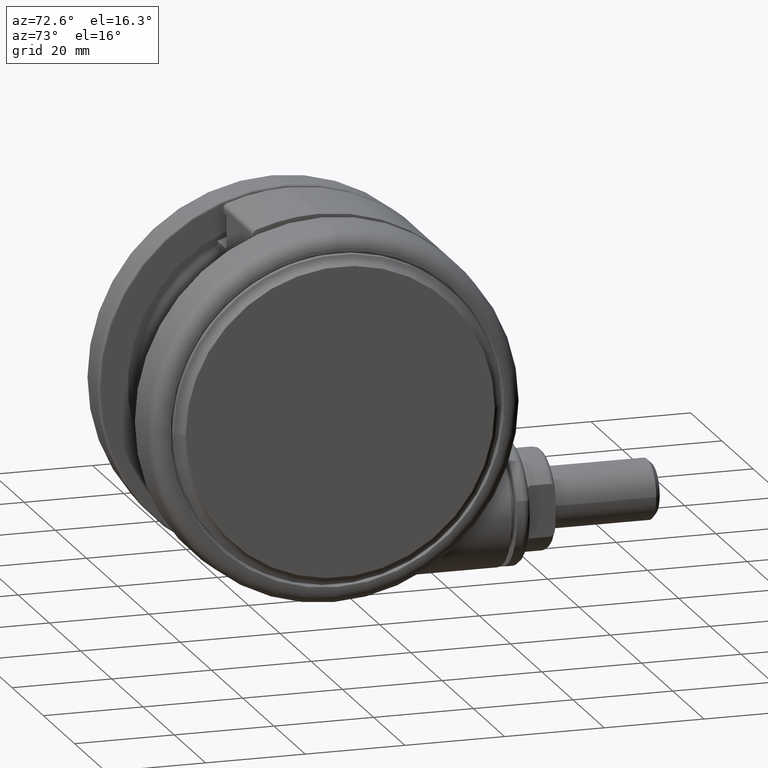
[diagram: clean part render]
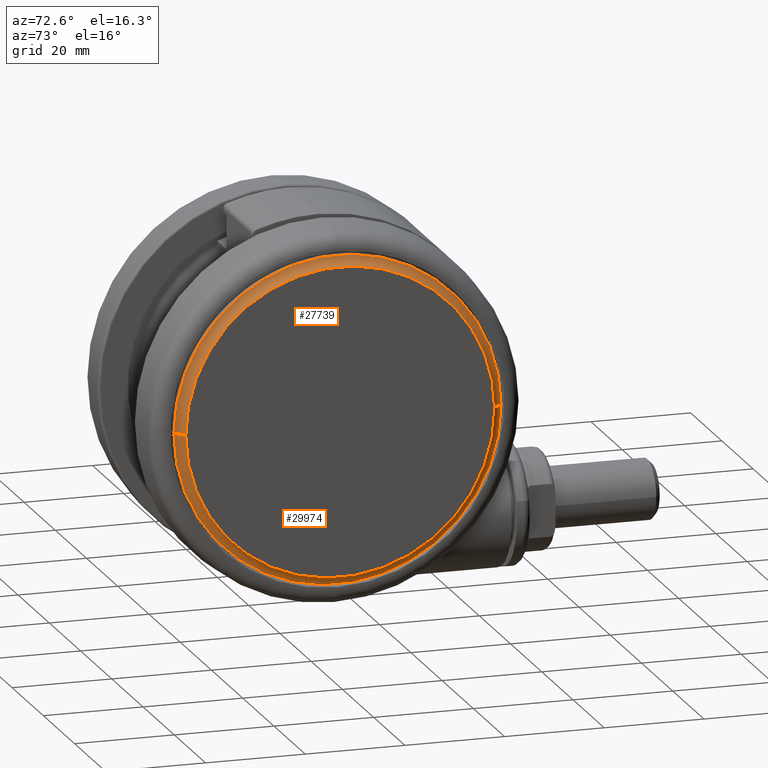
[diagram: same view with one multi-face feature highlighted, each face labeled with its STEP entity id]
A machine part, auxiliary view. The highlighted faces form ONE feature: a constant-radius fillet chain: 2 tangent blend faces with common blend radius 2.2 mm. The faces share edges in the B-rep.
Their STEP definitions:
[1] entity #27739 (Torus):
#140 = AXIS2_PLACEMENT_3D ( 'NONE', #41279, #14474, #45780 ) ;
#2730 = DIRECTION ( 'NONE',  ( 1.224646799147353200E-016, 1.000000000000000000, -0.0000000000000000000 ) ) ;
#2747 = ORIENTED_EDGE ( 'NONE', *, *, #40295, .F. ) ;
#2987 = CIRCLE ( 'NONE', #48537, 2.200000000000000600 ) ;
#3096 = EDGE_CURVE ( 'NONE', #14335, #57548, #17477, .T. ) ;
#8681 = DIRECTION ( 'NONE',  ( 1.000000000000000000, 0.0000000000000000000, 0.0000000000000000000 ) ) ;
#13004 = EDGE_LOOP ( 'NONE', ( #2747, #18936, #57588, #16502 ) ) ;
#13589 = DIRECTION ( 'NONE',  ( 0.0000000000000000000, -1.000000000000000000, 0.0000000000000000000 ) ) ;
#14335 = VERTEX_POINT ( 'NONE', #28966 ) ;
#14417 = VERTEX_POINT ( 'NONE', #15477 ) ;
#14474 = DIRECTION ( 'NONE',  ( 0.0000000000000000000, 0.0000000000000000000, 1.000000000000000000 ) ) ;
#15477 = CARTESIAN_POINT ( 'NONE',  ( -31.00000000000000000, 3.907598370292685700E-015, -1.301042606982605300E-015 ) ) ;
#16341 = CIRCLE ( 'NONE', #140, 32.81592428140525200 ) ;
#16502 = ORIENTED_EDGE ( 'NONE', *, *, #3096, .F. ) ;
#17477 = CIRCLE ( 'NONE', #37555, 2.200000000000000200 ) ;
#18936 = ORIENTED_EDGE ( 'NONE', *, *, #29888, .T. ) ;
#19014 = AXIS2_PLACEMENT_3D ( 'NONE', #19309, #50591, #23822 ) ;
#19309 = CARTESIAN_POINT ( 'NONE',  ( 0.0000000000000000000, 0.0000000000000000000, -1.301042606982605300E-015 ) ) ;
#22837 = CARTESIAN_POINT ( 'NONE',  ( -32.81592428142002400, 4.018791663230294400E-015, -1.788098396446942800 ) ) ;
#23822 = DIRECTION ( 'NONE',  ( 1.000000000000000000, 0.0000000000000000000, 0.0000000000000000000 ) ) ;
#26281 = CARTESIAN_POINT ( 'NONE',  ( 32.81592428142002400, 0.0000000000000000000, -1.788098396446942800 ) ) ;
#27739 = ADVANCED_FACE ( 'NONE', ( #51426 ), #39549, .F. ) ;
#28496 = EDGE_CURVE ( 'NONE', #55645, #57548, #16341, .T. ) ;
#28966 = CARTESIAN_POINT ( 'NONE',  ( 31.00000000000000000, 0.0000000000000000000, -1.301042606982605300E-015 ) ) ;
#29538 = CARTESIAN_POINT ( 'NONE',  ( -33.16625847233755300, 4.061695227784196800E-015, 0.3838283874674035500 ) ) ;
#29888 = EDGE_CURVE ( 'NONE', #14417, #55645, #2987, .T. ) ;
#34022 = DIRECTION ( 'NONE',  ( -1.000000000000000000, 1.224646799147351500E-016, 0.0000000000000000000 ) ) ;
#35504 = CARTESIAN_POINT ( 'NONE',  ( 0.0000000000000000000, 0.0000000000000000000, 0.3838283874674035500 ) ) ;
#37555 = AXIS2_PLACEMENT_3D ( 'NONE', #40412, #13589, #44896 ) ;
#38851 = CIRCLE ( 'NONE', #19014, 31.00000000000000000 ) ;
#39549 = TOROIDAL_SURFACE ( 'NONE', #55594, 33.16625847233755300, 2.200000000000000200 ) ;
#40295 = EDGE_CURVE ( 'NONE', #14417, #14335, #38851, .T. ) ;
#40412 = CARTESIAN_POINT ( 'NONE',  ( 33.16625847233755300, 0.0000000000000000000, 0.3838283874674035500 ) ) ;
#41279 = CARTESIAN_POINT ( 'NONE',  ( 0.0000000000000000000, 0.0000000000000000000, -1.788098396446942800 ) ) ;
#44896 = DIRECTION ( 'NONE',  ( 0.0000000000000000000, 0.0000000000000000000, -1.000000000000000000 ) ) ;
#45780 = DIRECTION ( 'NONE',  ( 1.000000000000000000, 0.0000000000000000000, 0.0000000000000000000 ) ) ;
#48537 = AXIS2_PLACEMENT_3D ( 'NONE', #29538, #2730, #34022 ) ;
#50591 = DIRECTION ( 'NONE',  ( 0.0000000000000000000, 0.0000000000000000000, 1.000000000000000000 ) ) ;
#51426 = FACE_OUTER_BOUND ( 'NONE', #13004, .T. ) ;
#53331 = DIRECTION ( 'NONE',  ( 0.0000000000000000000, 0.0000000000000000000, 1.000000000000000000 ) ) ;
#55594 = AXIS2_PLACEMENT_3D ( 'NONE', #35504, #53331, #8681 ) ;
#55645 = VERTEX_POINT ( 'NONE', #22837 ) ;
#57548 = VERTEX_POINT ( 'NONE', #26281 ) ;
#57588 = ORIENTED_EDGE ( 'NONE', *, *, #28496, .T. ) ;
[2] entity #29974 (Torus):
#395 = AXIS2_PLACEMENT_3D ( 'NONE', #6752, #38109, #11272 ) ;
#1625 = CARTESIAN_POINT ( 'NONE',  ( 0.0000000000000000000, 0.0000000000000000000, -1.301042606982605300E-015 ) ) ;
#2730 = DIRECTION ( 'NONE',  ( 1.224646799147353200E-016, 1.000000000000000000, -0.0000000000000000000 ) ) ;
#2858 = ORIENTED_EDGE ( 'NONE', *, *, #57328, .F. ) ;
#2987 = CIRCLE ( 'NONE', #48537, 2.200000000000000600 ) ;
#3096 = EDGE_CURVE ( 'NONE', #14335, #57548, #17477, .T. ) ;
#6110 = DIRECTION ( 'NONE',  ( 1.000000000000000000, 0.0000000000000000000, 0.0000000000000000000 ) ) ;
#6752 = CARTESIAN_POINT ( 'NONE',  ( 0.0000000000000000000, 0.0000000000000000000, -1.788098396446942800 ) ) ;
#11272 = DIRECTION ( 'NONE',  ( 1.000000000000000000, 0.0000000000000000000, 0.0000000000000000000 ) ) ;
#11960 = EDGE_LOOP ( 'NONE', ( #50247, #2858, #46109, #52628 ) ) ;
#13589 = DIRECTION ( 'NONE',  ( 0.0000000000000000000, -1.000000000000000000, 0.0000000000000000000 ) ) ;
#14335 = VERTEX_POINT ( 'NONE', #28966 ) ;
#14417 = VERTEX_POINT ( 'NONE', #15477 ) ;
#15477 = CARTESIAN_POINT ( 'NONE',  ( -31.00000000000000000, 3.907598370292685700E-015, -1.301042606982605300E-015 ) ) ;
#17477 = CIRCLE ( 'NONE', #37555, 2.200000000000000200 ) ;
#22837 = CARTESIAN_POINT ( 'NONE',  ( -32.81592428142002400, 4.018791663230294400E-015, -1.788098396446942800 ) ) ;
#26043 = DIRECTION ( 'NONE',  ( 0.0000000000000000000, 0.0000000000000000000, 1.000000000000000000 ) ) ;
#26071 = EDGE_CURVE ( 'NONE', #57548, #55645, #54447, .T. ) ;
#26235 = DIRECTION ( 'NONE',  ( 1.000000000000000000, 0.0000000000000000000, 0.0000000000000000000 ) ) ;
#26281 = CARTESIAN_POINT ( 'NONE',  ( 32.81592428142002400, 0.0000000000000000000, -1.788098396446942800 ) ) ;
#26460 = AXIS2_PLACEMENT_3D ( 'NONE', #53046, #26043, #26235 ) ;
#28966 = CARTESIAN_POINT ( 'NONE',  ( 31.00000000000000000, 0.0000000000000000000, -1.301042606982605300E-015 ) ) ;
#29538 = CARTESIAN_POINT ( 'NONE',  ( -33.16625847233755300, 4.061695227784196800E-015, 0.3838283874674035500 ) ) ;
#29888 = EDGE_CURVE ( 'NONE', #14417, #55645, #2987, .T. ) ;
#29974 = ADVANCED_FACE ( 'NONE', ( #34471 ), #45006, .F. ) ;
#32919 = DIRECTION ( 'NONE',  ( 0.0000000000000000000, 0.0000000000000000000, 1.000000000000000000 ) ) ;
#34022 = DIRECTION ( 'NONE',  ( -1.000000000000000000, 1.224646799147351500E-016, 0.0000000000000000000 ) ) ;
#34471 = FACE_OUTER_BOUND ( 'NONE', #11960, .T. ) ;
#37555 = AXIS2_PLACEMENT_3D ( 'NONE', #40412, #13589, #44896 ) ;
#38109 = DIRECTION ( 'NONE',  ( 0.0000000000000000000, 0.0000000000000000000, 1.000000000000000000 ) ) ;
#40412 = CARTESIAN_POINT ( 'NONE',  ( 33.16625847233755300, 0.0000000000000000000, 0.3838283874674035500 ) ) ;
#42949 = AXIS2_PLACEMENT_3D ( 'NONE', #1625, #32919, #6110 ) ;
#44896 = DIRECTION ( 'NONE',  ( 0.0000000000000000000, 0.0000000000000000000, -1.000000000000000000 ) ) ;
#45006 = TOROIDAL_SURFACE ( 'NONE', #26460, 33.16625847233755300, 2.200000000000000200 ) ;
#46109 = ORIENTED_EDGE ( 'NONE', *, *, #3096, .T. ) ;
#48537 = AXIS2_PLACEMENT_3D ( 'NONE', #29538, #2730, #34022 ) ;
#50247 = ORIENTED_EDGE ( 'NONE', *, *, #29888, .F. ) ;
#52628 = ORIENTED_EDGE ( 'NONE', *, *, #26071, .T. ) ;
#53046 = CARTESIAN_POINT ( 'NONE',  ( 0.0000000000000000000, 0.0000000000000000000, 0.3838283874674035500 ) ) ;
#53594 = CIRCLE ( 'NONE', #42949, 31.00000000000000000 ) ;
#54447 = CIRCLE ( 'NONE', #395, 32.81592428140525200 ) ;
#55645 = VERTEX_POINT ( 'NONE', #22837 ) ;
#57328 = EDGE_CURVE ( 'NONE', #14335, #14417, #53594, .T. ) ;
#57548 = VERTEX_POINT ( 'NONE', #26281 ) ;